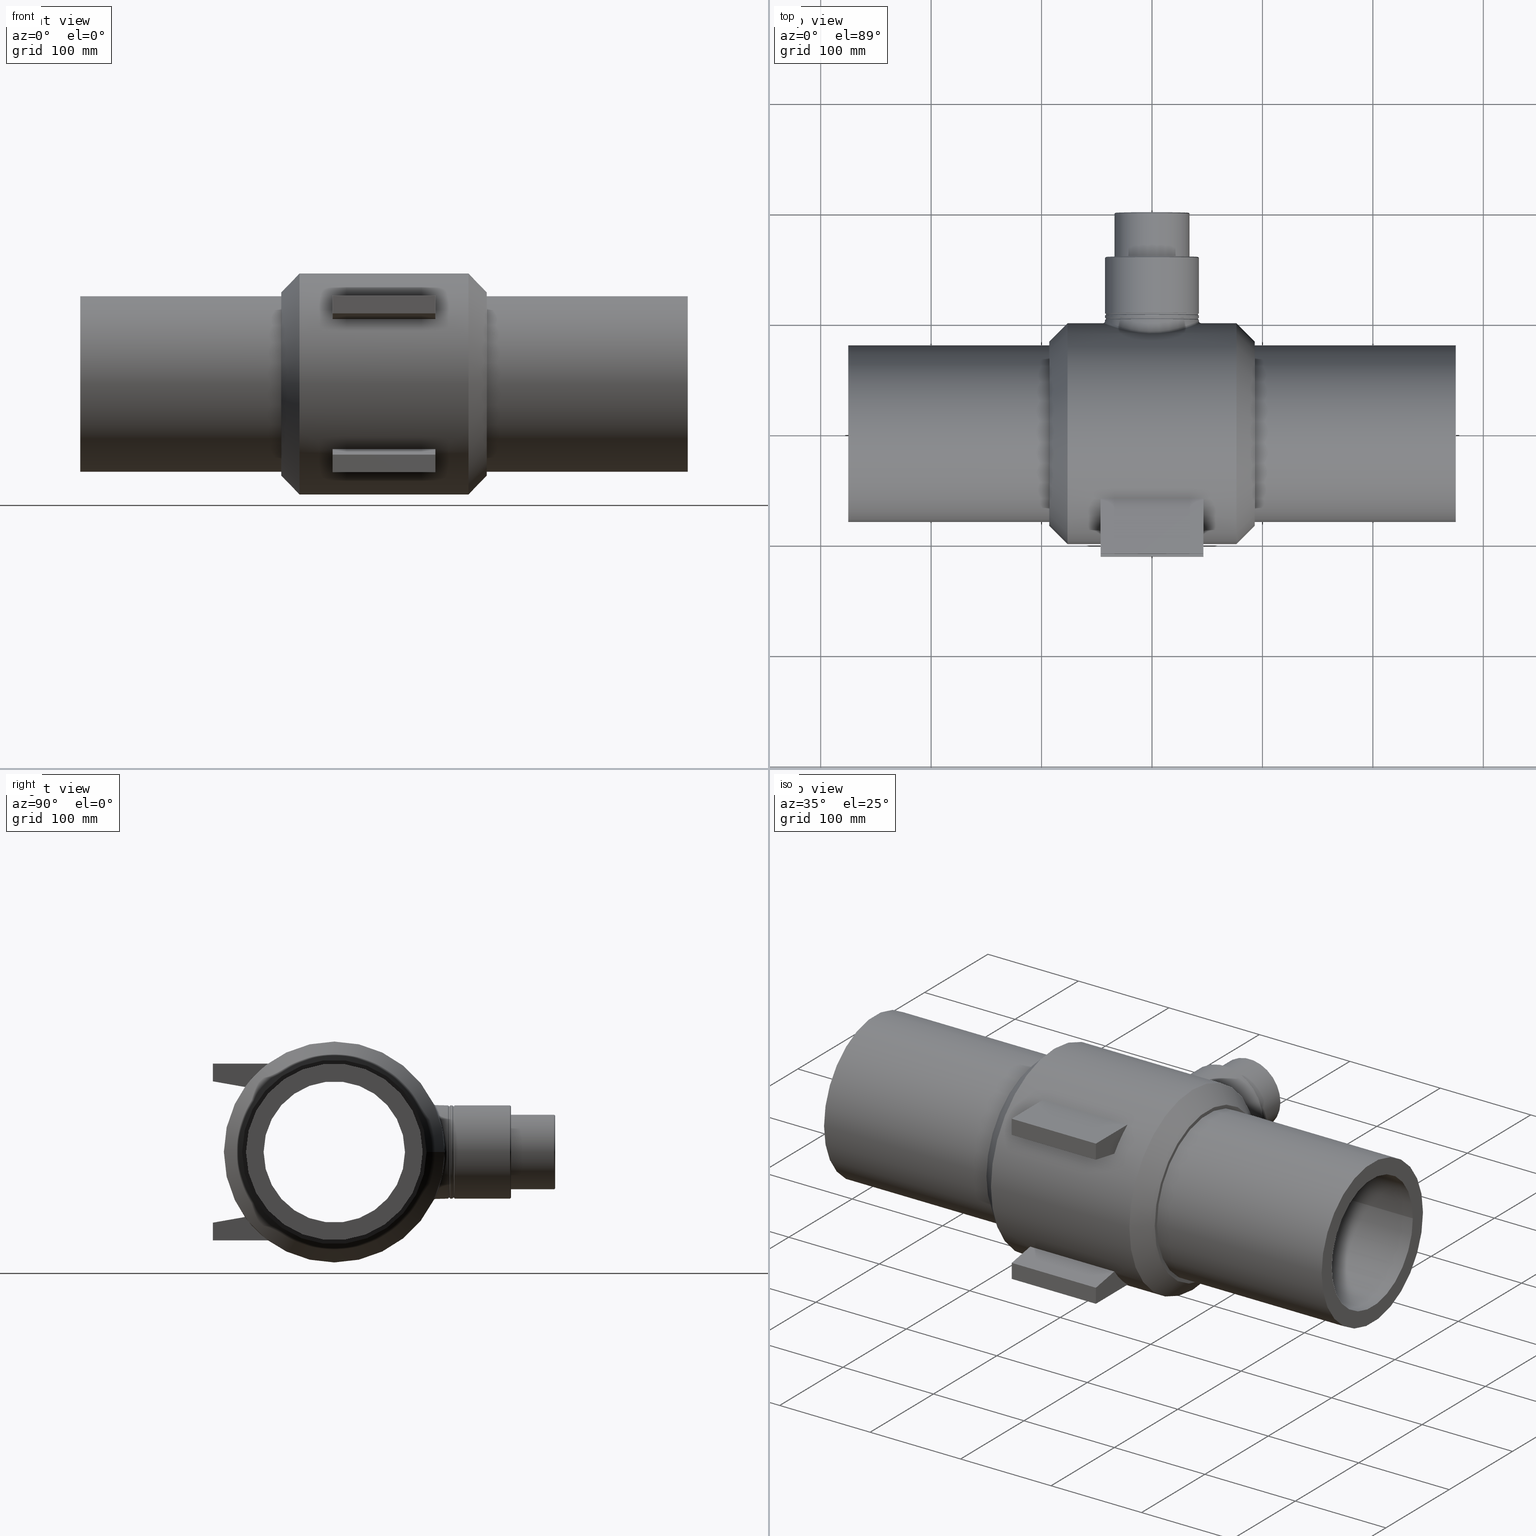
[diagram: canonical four-view strip — front | top / right | iso, engineering-drawing reading convention]
A machine part, canonical four-view strip (front | top / right | iso — engineering-drawing reading convention). The complete STEP part file that produces these views, byte-faithful:
ISO-10303-21;
HEADER;
/* Generated by software containing ST-Developer
 * from STEP Tools, Inc. (www.steptools.com) 
 */

FILE_DESCRIPTION(
/* description */ ('PLASSON PE BALL VALVE 160'),
/* implementation_level */ '2;1');

FILE_NAME(
/* name */ 
'C:\\Dropbox\\KIMPROJECTS-Inventor\\99-16-3568-Processing\\ElectroFusi
on Fittings\\436207\\436207160.ipt.stp',
/* time_stamp */ '2017-10-01T14:42:19+03:00',
/* author */ ('\X2\041A043804400438043B043B\X0\'),
/* organization */ (''),
/* preprocessor_version */ 'ST-DEVELOPER v15.6',
/* originating_system */ 'Autodesk Inventor 2015',
/* authorisation */ '');

FILE_SCHEMA (('AUTOMOTIVE_DESIGN { 1 0 10303 214 3 1 1 }'));
ENDSEC;

DATA;
#10=MECHANICAL_DESIGN_GEOMETRIC_PRESENTATION_REPRESENTATION('',(#13),#940);
#11=SHAPE_REPRESENTATION_RELATIONSHIP('SRR','None',#949,#12);
#12=ADVANCED_BREP_SHAPE_REPRESENTATION($,(#14),#939);
#13=STYLED_ITEM('',(#958),#14);
#14=MANIFOLD_SOLID_BREP('Solid1',#446);
#15=SPHERICAL_SURFACE('',#499,88.);
#16=TOROIDAL_SURFACE('',#470,42.5,0.85);
#17=TOROIDAL_SURFACE('',#474,42.5,0.85);
#18=PLANE('',#463);
#19=PLANE('',#469);
#20=PLANE('',#475);
#21=PLANE('',#476);
#22=PLANE('',#477);
#23=PLANE('',#478);
#24=PLANE('',#479);
#25=PLANE('',#480);
#26=PLANE('',#481);
#27=PLANE('',#482);
#28=PLANE('',#483);
#29=PLANE('',#484);
#30=PLANE('',#485);
#31=PLANE('',#491);
#32=PLANE('',#495);
#33=PLANE('',#503);
#34=CONICAL_SURFACE('',#458,42.075,44.9999999999997);
#35=CONICAL_SURFACE('',#465,33.575,44.9999999999994);
#36=CONICAL_SURFACE('',#488,91.75,45.);
#37=CONICAL_SURFACE('',#489,91.75,45.);
#38=LINE('',#835,#58);
#39=LINE('',#838,#59);
#40=LINE('',#843,#60);
#41=LINE('',#846,#61);
#42=LINE('',#874,#62);
#43=LINE('',#876,#63);
#44=LINE('',#877,#64);
#45=LINE('',#880,#65);
#46=LINE('',#881,#66);
#47=LINE('',#884,#67);
#48=LINE('',#885,#68);
#49=LINE('',#887,#69);
#50=LINE('',#891,#70);
#51=LINE('',#893,#71);
#52=LINE('',#894,#72);
#53=LINE('',#897,#73);
#54=LINE('',#898,#74);
#55=LINE('',#901,#75);
#56=LINE('',#902,#76);
#57=LINE('',#904,#77);
#58=VECTOR('',#522,93.);
#59=VECTOR('',#525,93.);
#60=VECTOR('',#528,93.);
#61=VECTOR('',#531,93.);
#62=VECTOR('',#568,50.);
#63=VECTOR('',#569,16.);
#64=VECTOR('',#570,29.6065322183256);
#65=VECTOR('',#573,93.);
#66=VECTOR('',#574,29.6065322183256);
#67=VECTOR('',#577,93.);
#68=VECTOR('',#578,16.);
#69=VECTOR('',#581,50.);
#70=VECTOR('',#586,50.);
#71=VECTOR('',#587,29.6065322183256);
#72=VECTOR('',#588,16.);
#73=VECTOR('',#591,29.6065322183256);
#74=VECTOR('',#592,93.);
#75=VECTOR('',#595,16.);
#76=VECTOR('',#596,93.);
#77=VECTOR('',#599,50.);
#78=FACE_BOUND('',#146,.T.);
#79=FACE_BOUND('',#148,.T.);
#80=FACE_BOUND('',#149,.T.);
#81=FACE_BOUND('',#150,.T.);
#82=FACE_BOUND('',#151,.T.);
#83=FACE_BOUND('',#153,.T.);
#84=FACE_BOUND('',#155,.T.);
#85=FACE_BOUND('',#157,.T.);
#86=FACE_BOUND('',#159,.T.);
#87=FACE_BOUND('',#161,.T.);
#88=FACE_BOUND('',#164,.T.);
#89=FACE_BOUND('',#166,.T.);
#90=FACE_BOUND('',#168,.T.);
#91=FACE_BOUND('',#180,.T.);
#92=FACE_BOUND('',#182,.T.);
#93=FACE_BOUND('',#184,.T.);
#94=FACE_BOUND('',#186,.T.);
#95=FACE_BOUND('',#188,.T.);
#96=FACE_BOUND('',#190,.T.);
#97=FACE_BOUND('',#192,.T.);
#98=FACE_BOUND('',#193,.T.);
#99=FACE_BOUND('',#194,.T.);
#100=FACE_BOUND('',#196,.T.);
#101=FACE_BOUND('',#198,.T.);
#102=FACE_BOUND('',#200,.T.);
#103=CYLINDRICAL_SURFACE('',#449,42.5);
#104=CYLINDRICAL_SURFACE('',#451,100.);
#105=CYLINDRICAL_SURFACE('',#461,42.5);
#106=CYLINDRICAL_SURFACE('',#468,34.);
#107=CYLINDRICAL_SURFACE('',#472,42.5);
#108=CYLINDRICAL_SURFACE('',#493,80.);
#109=CYLINDRICAL_SURFACE('',#497,64.);
#110=CYLINDRICAL_SURFACE('',#501,64.);
#111=CYLINDRICAL_SURFACE('',#505,80.);
#112=FACE_OUTER_BOUND('',#144,.T.);
#113=FACE_OUTER_BOUND('',#145,.T.);
#114=FACE_OUTER_BOUND('',#147,.T.);
#115=FACE_OUTER_BOUND('',#152,.T.);
#116=FACE_OUTER_BOUND('',#154,.T.);
#117=FACE_OUTER_BOUND('',#156,.T.);
#118=FACE_OUTER_BOUND('',#158,.T.);
#119=FACE_OUTER_BOUND('',#160,.T.);
#120=FACE_OUTER_BOUND('',#162,.T.);
#121=FACE_OUTER_BOUND('',#163,.T.);
#122=FACE_OUTER_BOUND('',#165,.T.);
#123=FACE_OUTER_BOUND('',#167,.T.);
#124=FACE_OUTER_BOUND('',#169,.T.);
#125=FACE_OUTER_BOUND('',#170,.T.);
#126=FACE_OUTER_BOUND('',#171,.T.);
#127=FACE_OUTER_BOUND('',#172,.T.);
#128=FACE_OUTER_BOUND('',#173,.T.);
#129=FACE_OUTER_BOUND('',#174,.T.);
#130=FACE_OUTER_BOUND('',#175,.T.);
#131=FACE_OUTER_BOUND('',#176,.T.);
#132=FACE_OUTER_BOUND('',#177,.T.);
#133=FACE_OUTER_BOUND('',#178,.T.);
#134=FACE_OUTER_BOUND('',#179,.T.);
#135=FACE_OUTER_BOUND('',#181,.T.);
#136=FACE_OUTER_BOUND('',#183,.T.);
#137=FACE_OUTER_BOUND('',#185,.T.);
#138=FACE_OUTER_BOUND('',#187,.T.);
#139=FACE_OUTER_BOUND('',#189,.T.);
#140=FACE_OUTER_BOUND('',#191,.T.);
#141=FACE_OUTER_BOUND('',#195,.T.);
#142=FACE_OUTER_BOUND('',#197,.T.);
#143=FACE_OUTER_BOUND('',#199,.T.);
#144=EDGE_LOOP('',(#316,#317,#318,#319));
#145=EDGE_LOOP('',(#320));
#146=EDGE_LOOP('',(#321));
#147=EDGE_LOOP('',(#322));
#148=EDGE_LOOP('',(#323));
#149=EDGE_LOOP('',(#324,#325,#326,#327));
#150=EDGE_LOOP('',(#328,#329,#330,#331));
#151=EDGE_LOOP('',(#332));
#152=EDGE_LOOP('',(#333));
#153=EDGE_LOOP('',(#334));
#154=EDGE_LOOP('',(#335));
#155=EDGE_LOOP('',(#336));
#156=EDGE_LOOP('',(#337));
#157=EDGE_LOOP('',(#338));
#158=EDGE_LOOP('',(#339));
#159=EDGE_LOOP('',(#340));
#160=EDGE_LOOP('',(#341));
#161=EDGE_LOOP('',(#342));
#162=EDGE_LOOP('',(#343));
#163=EDGE_LOOP('',(#344));
#164=EDGE_LOOP('',(#345));
#165=EDGE_LOOP('',(#346));
#166=EDGE_LOOP('',(#347));
#167=EDGE_LOOP('',(#348));
#168=EDGE_LOOP('',(#349));
#169=EDGE_LOOP('',(#350,#351,#352,#353));
#170=EDGE_LOOP('',(#354,#355,#356,#357));
#171=EDGE_LOOP('',(#358,#359,#360,#361));
#172=EDGE_LOOP('',(#362,#363,#364,#365));
#173=EDGE_LOOP('',(#366,#367,#368,#369));
#174=EDGE_LOOP('',(#370,#371,#372,#373));
#175=EDGE_LOOP('',(#374,#375,#376,#377));
#176=EDGE_LOOP('',(#378,#379,#380,#381));
#177=EDGE_LOOP('',(#382,#383,#384,#385));
#178=EDGE_LOOP('',(#386,#387,#388,#389));
#179=EDGE_LOOP('',(#390));
#180=EDGE_LOOP('',(#391));
#181=EDGE_LOOP('',(#392));
#182=EDGE_LOOP('',(#393));
#183=EDGE_LOOP('',(#394));
#184=EDGE_LOOP('',(#395));
#185=EDGE_LOOP('',(#396));
#186=EDGE_LOOP('',(#397));
#187=EDGE_LOOP('',(#398));
#188=EDGE_LOOP('',(#399));
#189=EDGE_LOOP('',(#400));
#190=EDGE_LOOP('',(#401));
#191=EDGE_LOOP('',(#402));
#192=EDGE_LOOP('',(#403));
#193=EDGE_LOOP('',(#404));
#194=EDGE_LOOP('',(#405));
#195=EDGE_LOOP('',(#406));
#196=EDGE_LOOP('',(#407));
#197=EDGE_LOOP('',(#408));
#198=EDGE_LOOP('',(#409));
#199=EDGE_LOOP('',(#410));
#200=EDGE_LOOP('',(#411));
#201=B_SPLINE_CURVE_WITH_KNOTS('',3,(#773,#774,#775,#776,#777,#778,#779,
#780,#781,#782,#783,#784,#785,#786,#787,#788,#789,#790,#791,#792,#793,#794,
#795,#796,#797),.UNSPECIFIED.,.T.,.F.,(4,1,1,1,1,1,1,1,1,1,1,1,1,1,1,1,
1,1,1,1,1,1,4),(12.9889981258876,13.9167837063082,14.8445692867287,16.7001404475698,
18.5557116084109,19.4834971888314,20.411282769252,21.6483302098127,22.8853776503734,
24.1224250909342,24.7409488112145,25.3594725314949,26.5965199720556,27.8335674126163,
29.0706148531771,30.3076622937378,31.5447097342985,32.7817571748593,34.01880461542,
35.2558520559807,37.1114232168218,38.0392087972423,38.9669943776629),
 .UNSPECIFIED.);
#202=B_SPLINE_CURVE_WITH_KNOTS('',3,(#798,#799,#800,#801,#802,#803,#804,
#805,#806,#807,#808,#809,#810,#811,#812,#813,#814,#815,#816,#817,#818,#819,
#820,#821,#822),.UNSPECIFIED.,.T.,.F.,(4,1,1,1,1,1,1,1,1,1,1,1,1,1,1,1,
1,1,1,1,1,1,4),(-38.9669943776629,-38.0392087972423,-37.1114232168218,-35.2558520559807,
-34.01880461542,-32.7817571748593,-31.5447097342985,-30.3076622937378,-29.0706148531771,
-27.8335674126163,-26.5965199720556,-25.3594725314949,-24.7409488112145,
-24.1224250909342,-22.8853776503734,-21.6483302098127,-20.411282769252,
-19.4834971888314,-18.5557116084109,-16.7001404475698,-14.8445692867287,
-13.9167837063082,-12.9889981258876),.UNSPECIFIED.);
#203=CIRCLE('',#448,1.7);
#204=CIRCLE('',#450,42.5);
#205=CIRCLE('',#452,100.);
#206=CIRCLE('',#453,100.);
#207=CIRCLE('',#454,100.);
#208=CIRCLE('',#455,100.);
#209=CIRCLE('',#456,100.);
#210=CIRCLE('',#457,100.);
#211=CIRCLE('',#459,42.5);
#212=CIRCLE('',#460,41.65);
#213=CIRCLE('',#462,42.5);
#214=CIRCLE('',#464,34.);
#215=CIRCLE('',#466,34.);
#216=CIRCLE('',#467,33.15);
#217=CIRCLE('',#471,42.5);
#218=CIRCLE('',#473,42.5);
#219=CIRCLE('',#486,83.5);
#220=CIRCLE('',#487,80.);
#221=CIRCLE('',#490,83.5);
#222=CIRCLE('',#492,80.);
#223=CIRCLE('',#494,80.);
#224=CIRCLE('',#496,64.);
#225=CIRCLE('',#498,64.);
#226=CIRCLE('',#500,64.);
#227=CIRCLE('',#502,64.);
#228=CIRCLE('',#504,80.);
#229=VERTEX_POINT('',#770);
#230=VERTEX_POINT('',#771);
#231=VERTEX_POINT('',#824);
#232=VERTEX_POINT('',#827);
#233=VERTEX_POINT('',#829);
#234=VERTEX_POINT('',#831);
#235=VERTEX_POINT('',#832);
#236=VERTEX_POINT('',#834);
#237=VERTEX_POINT('',#836);
#238=VERTEX_POINT('',#839);
#239=VERTEX_POINT('',#840);
#240=VERTEX_POINT('',#842);
#241=VERTEX_POINT('',#844);
#242=VERTEX_POINT('',#848);
#243=VERTEX_POINT('',#850);
#244=VERTEX_POINT('',#853);
#245=VERTEX_POINT('',#856);
#246=VERTEX_POINT('',#859);
#247=VERTEX_POINT('',#861);
#248=VERTEX_POINT('',#866);
#249=VERTEX_POINT('',#869);
#250=VERTEX_POINT('',#873);
#251=VERTEX_POINT('',#875);
#252=VERTEX_POINT('',#879);
#253=VERTEX_POINT('',#883);
#254=VERTEX_POINT('',#890);
#255=VERTEX_POINT('',#892);
#256=VERTEX_POINT('',#896);
#257=VERTEX_POINT('',#900);
#258=VERTEX_POINT('',#907);
#259=VERTEX_POINT('',#909);
#260=VERTEX_POINT('',#913);
#261=VERTEX_POINT('',#916);
#262=VERTEX_POINT('',#919);
#263=VERTEX_POINT('',#922);
#264=VERTEX_POINT('',#925);
#265=VERTEX_POINT('',#928);
#266=VERTEX_POINT('',#931);
#267=VERTEX_POINT('',#934);
#268=EDGE_CURVE('',#229,#230,#203,.T.);
#269=EDGE_CURVE('',#230,#230,#201,.T.);
#270=EDGE_CURVE('',#229,#229,#202,.T.);
#271=EDGE_CURVE('',#231,#231,#204,.T.);
#272=EDGE_CURVE('',#232,#232,#205,.T.);
#273=EDGE_CURVE('',#233,#233,#206,.T.);
#274=EDGE_CURVE('',#234,#235,#207,.T.);
#275=EDGE_CURVE('',#235,#236,#38,.T.);
#276=EDGE_CURVE('',#236,#237,#208,.T.);
#277=EDGE_CURVE('',#237,#234,#39,.T.);
#278=EDGE_CURVE('',#238,#239,#209,.T.);
#279=EDGE_CURVE('',#239,#240,#40,.T.);
#280=EDGE_CURVE('',#240,#241,#210,.T.);
#281=EDGE_CURVE('',#241,#238,#41,.T.);
#282=EDGE_CURVE('',#242,#242,#211,.T.);
#283=EDGE_CURVE('',#243,#243,#212,.T.);
#284=EDGE_CURVE('',#244,#244,#213,.T.);
#285=EDGE_CURVE('',#245,#245,#214,.T.);
#286=EDGE_CURVE('',#246,#246,#215,.T.);
#287=EDGE_CURVE('',#247,#247,#216,.T.);
#288=EDGE_CURVE('',#248,#248,#217,.T.);
#289=EDGE_CURVE('',#249,#249,#218,.T.);
#290=EDGE_CURVE('',#250,#238,#42,.T.);
#291=EDGE_CURVE('',#251,#250,#43,.T.);
#292=EDGE_CURVE('',#239,#251,#44,.T.);
#293=EDGE_CURVE('',#251,#252,#45,.T.);
#294=EDGE_CURVE('',#252,#240,#46,.T.);
#295=EDGE_CURVE('',#250,#253,#47,.T.);
#296=EDGE_CURVE('',#253,#252,#48,.T.);
#297=EDGE_CURVE('',#241,#253,#49,.T.);
#298=EDGE_CURVE('',#254,#235,#50,.T.);
#299=EDGE_CURVE('',#234,#255,#51,.T.);
#300=EDGE_CURVE('',#255,#254,#52,.T.);
#301=EDGE_CURVE('',#256,#237,#53,.T.);
#302=EDGE_CURVE('',#255,#256,#54,.T.);
#303=EDGE_CURVE('',#257,#256,#55,.T.);
#304=EDGE_CURVE('',#254,#257,#56,.T.);
#305=EDGE_CURVE('',#236,#257,#57,.T.);
#306=EDGE_CURVE('',#258,#258,#219,.T.);
#307=EDGE_CURVE('',#259,#259,#220,.T.);
#308=EDGE_CURVE('',#260,#260,#221,.T.);
#309=EDGE_CURVE('',#261,#261,#222,.T.);
#310=EDGE_CURVE('',#262,#262,#223,.T.);
#311=EDGE_CURVE('',#263,#263,#224,.T.);
#312=EDGE_CURVE('',#264,#264,#225,.T.);
#313=EDGE_CURVE('',#265,#265,#226,.T.);
#314=EDGE_CURVE('',#266,#266,#227,.T.);
#315=EDGE_CURVE('',#267,#267,#228,.T.);
#316=ORIENTED_EDGE('',*,*,#268,.T.);
#317=ORIENTED_EDGE('',*,*,#269,.T.);
#318=ORIENTED_EDGE('',*,*,#268,.F.);
#319=ORIENTED_EDGE('',*,*,#270,.T.);
#320=ORIENTED_EDGE('',*,*,#271,.F.);
#321=ORIENTED_EDGE('',*,*,#269,.F.);
#322=ORIENTED_EDGE('',*,*,#272,.T.);
#323=ORIENTED_EDGE('',*,*,#273,.F.);
#324=ORIENTED_EDGE('',*,*,#274,.T.);
#325=ORIENTED_EDGE('',*,*,#275,.T.);
#326=ORIENTED_EDGE('',*,*,#276,.T.);
#327=ORIENTED_EDGE('',*,*,#277,.T.);
#328=ORIENTED_EDGE('',*,*,#278,.T.);
#329=ORIENTED_EDGE('',*,*,#279,.T.);
#330=ORIENTED_EDGE('',*,*,#280,.T.);
#331=ORIENTED_EDGE('',*,*,#281,.T.);
#332=ORIENTED_EDGE('',*,*,#270,.F.);
#333=ORIENTED_EDGE('',*,*,#282,.T.);
#334=ORIENTED_EDGE('',*,*,#283,.T.);
#335=ORIENTED_EDGE('',*,*,#284,.T.);
#336=ORIENTED_EDGE('',*,*,#282,.F.);
#337=ORIENTED_EDGE('',*,*,#283,.F.);
#338=ORIENTED_EDGE('',*,*,#285,.F.);
#339=ORIENTED_EDGE('',*,*,#286,.T.);
#340=ORIENTED_EDGE('',*,*,#287,.T.);
#341=ORIENTED_EDGE('',*,*,#285,.T.);
#342=ORIENTED_EDGE('',*,*,#286,.F.);
#343=ORIENTED_EDGE('',*,*,#287,.F.);
#344=ORIENTED_EDGE('',*,*,#271,.T.);
#345=ORIENTED_EDGE('',*,*,#288,.F.);
#346=ORIENTED_EDGE('',*,*,#288,.T.);
#347=ORIENTED_EDGE('',*,*,#289,.F.);
#348=ORIENTED_EDGE('',*,*,#289,.T.);
#349=ORIENTED_EDGE('',*,*,#284,.F.);
#350=ORIENTED_EDGE('',*,*,#290,.F.);
#351=ORIENTED_EDGE('',*,*,#291,.F.);
#352=ORIENTED_EDGE('',*,*,#292,.F.);
#353=ORIENTED_EDGE('',*,*,#278,.F.);
#354=ORIENTED_EDGE('',*,*,#279,.F.);
#355=ORIENTED_EDGE('',*,*,#292,.T.);
#356=ORIENTED_EDGE('',*,*,#293,.T.);
#357=ORIENTED_EDGE('',*,*,#294,.T.);
#358=ORIENTED_EDGE('',*,*,#293,.F.);
#359=ORIENTED_EDGE('',*,*,#291,.T.);
#360=ORIENTED_EDGE('',*,*,#295,.T.);
#361=ORIENTED_EDGE('',*,*,#296,.T.);
#362=ORIENTED_EDGE('',*,*,#295,.F.);
#363=ORIENTED_EDGE('',*,*,#290,.T.);
#364=ORIENTED_EDGE('',*,*,#281,.F.);
#365=ORIENTED_EDGE('',*,*,#297,.T.);
#366=ORIENTED_EDGE('',*,*,#297,.F.);
#367=ORIENTED_EDGE('',*,*,#280,.F.);
#368=ORIENTED_EDGE('',*,*,#294,.F.);
#369=ORIENTED_EDGE('',*,*,#296,.F.);
#370=ORIENTED_EDGE('',*,*,#298,.T.);
#371=ORIENTED_EDGE('',*,*,#274,.F.);
#372=ORIENTED_EDGE('',*,*,#299,.T.);
#373=ORIENTED_EDGE('',*,*,#300,.T.);
#374=ORIENTED_EDGE('',*,*,#277,.F.);
#375=ORIENTED_EDGE('',*,*,#301,.F.);
#376=ORIENTED_EDGE('',*,*,#302,.F.);
#377=ORIENTED_EDGE('',*,*,#299,.F.);
#378=ORIENTED_EDGE('',*,*,#302,.T.);
#379=ORIENTED_EDGE('',*,*,#303,.F.);
#380=ORIENTED_EDGE('',*,*,#304,.F.);
#381=ORIENTED_EDGE('',*,*,#300,.F.);
#382=ORIENTED_EDGE('',*,*,#304,.T.);
#383=ORIENTED_EDGE('',*,*,#305,.F.);
#384=ORIENTED_EDGE('',*,*,#275,.F.);
#385=ORIENTED_EDGE('',*,*,#298,.F.);
#386=ORIENTED_EDGE('',*,*,#305,.T.);
#387=ORIENTED_EDGE('',*,*,#303,.T.);
#388=ORIENTED_EDGE('',*,*,#301,.T.);
#389=ORIENTED_EDGE('',*,*,#276,.F.);
#390=ORIENTED_EDGE('',*,*,#306,.F.);
#391=ORIENTED_EDGE('',*,*,#307,.T.);
#392=ORIENTED_EDGE('',*,*,#272,.F.);
#393=ORIENTED_EDGE('',*,*,#306,.T.);
#394=ORIENTED_EDGE('',*,*,#308,.F.);
#395=ORIENTED_EDGE('',*,*,#273,.T.);
#396=ORIENTED_EDGE('',*,*,#308,.T.);
#397=ORIENTED_EDGE('',*,*,#309,.F.);
#398=ORIENTED_EDGE('',*,*,#310,.F.);
#399=ORIENTED_EDGE('',*,*,#309,.T.);
#400=ORIENTED_EDGE('',*,*,#310,.T.);
#401=ORIENTED_EDGE('',*,*,#311,.F.);
#402=ORIENTED_EDGE('',*,*,#312,.F.);
#403=ORIENTED_EDGE('',*,*,#311,.T.);
#404=ORIENTED_EDGE('',*,*,#313,.F.);
#405=ORIENTED_EDGE('',*,*,#312,.T.);
#406=ORIENTED_EDGE('',*,*,#314,.F.);
#407=ORIENTED_EDGE('',*,*,#313,.T.);
#408=ORIENTED_EDGE('',*,*,#315,.F.);
#409=ORIENTED_EDGE('',*,*,#314,.T.);
#410=ORIENTED_EDGE('',*,*,#307,.F.);
#411=ORIENTED_EDGE('',*,*,#315,.T.);
#412=B_SPLINE_SURFACE_WITH_KNOTS('',3,3,((#645,#646,#647,#648,#649,#650,
#651,#652,#653,#654,#655,#656,#657,#658,#659,#660,#661,#662,#663,#664,#665,
#666,#667,#668,#669),(#670,#671,#672,#673,#674,#675,#676,#677,#678,#679,
#680,#681,#682,#683,#684,#685,#686,#687,#688,#689,#690,#691,#692,#693,#694),
(#695,#696,#697,#698,#699,#700,#701,#702,#703,#704,#705,#706,#707,#708,
#709,#710,#711,#712,#713,#714,#715,#716,#717,#718,#719),(#720,#721,#722,
#723,#724,#725,#726,#727,#728,#729,#730,#731,#732,#733,#734,#735,#736,#737,
#738,#739,#740,#741,#742,#743,#744),(#745,#746,#747,#748,#749,#750,#751,
#752,#753,#754,#755,#756,#757,#758,#759,#760,#761,#762,#763,#764,#765,#766,
#767,#768,#769)),.UNSPECIFIED.,.F.,.T.,.F.,(4,1,4),(4,1,1,1,1,1,1,1,1,1,
1,1,1,1,1,1,1,1,1,1,1,1,4),(0.,0.571428571428571,1.),(12.9889981258876,
13.9167837063082,14.8445692867287,16.7001404475698,18.5557116084109,19.4834971888314,
20.411282769252,21.6483302098127,22.8853776503734,24.1224250909342,24.7409488112145,
25.3594725314949,26.5965199720556,27.8335674126163,29.0706148531771,30.3076622937378,
31.5447097342985,32.7817571748593,34.01880461542,35.2558520559807,37.1114232168218,
38.0392087972423,38.9669943776629),.UNSPECIFIED.);
#413=ADVANCED_FACE('',(#112),#412,.T.);
#414=ADVANCED_FACE('',(#113,#78),#103,.T.);
#415=ADVANCED_FACE('',(#114,#79,#80,#81,#82),#104,.T.);
#416=ADVANCED_FACE('',(#115,#83),#34,.T.);
#417=ADVANCED_FACE('',(#116,#84),#105,.T.);
#418=ADVANCED_FACE('',(#117,#85),#18,.T.);
#419=ADVANCED_FACE('',(#118,#86),#35,.T.);
#420=ADVANCED_FACE('',(#119,#87),#106,.T.);
#421=ADVANCED_FACE('',(#120),#19,.T.);
#422=ADVANCED_FACE('',(#121,#88),#16,.F.);
#423=ADVANCED_FACE('',(#122,#89),#107,.T.);
#424=ADVANCED_FACE('',(#123,#90),#17,.F.);
#425=ADVANCED_FACE('',(#124),#20,.T.);
#426=ADVANCED_FACE('',(#125),#21,.F.);
#427=ADVANCED_FACE('',(#126),#22,.F.);
#428=ADVANCED_FACE('',(#127),#23,.F.);
#429=ADVANCED_FACE('',(#128),#24,.F.);
#430=ADVANCED_FACE('',(#129),#25,.F.);
#431=ADVANCED_FACE('',(#130),#26,.T.);
#432=ADVANCED_FACE('',(#131),#27,.T.);
#433=ADVANCED_FACE('',(#132),#28,.T.);
#434=ADVANCED_FACE('',(#133),#29,.T.);
#435=ADVANCED_FACE('',(#134,#91),#30,.T.);
#436=ADVANCED_FACE('',(#135,#92),#36,.T.);
#437=ADVANCED_FACE('',(#136,#93),#37,.T.);
#438=ADVANCED_FACE('',(#137,#94),#31,.T.);
#439=ADVANCED_FACE('',(#138,#95),#108,.T.);
#440=ADVANCED_FACE('',(#139,#96),#32,.T.);
#441=ADVANCED_FACE('',(#140,#97),#109,.F.);
#442=ADVANCED_FACE('',(#98,#99),#15,.F.);
#443=ADVANCED_FACE('',(#141,#100),#110,.F.);
#444=ADVANCED_FACE('',(#142,#101),#33,.T.);
#445=ADVANCED_FACE('',(#143,#102),#111,.T.);
#446=CLOSED_SHELL('',(#413,#414,#415,#416,#417,#418,#419,#420,#421,#422,
#423,#424,#425,#426,#427,#428,#429,#430,#431,#432,#433,#434,#435,#436,#437,
#438,#439,#440,#441,#442,#443,#444,#445));
#447=AXIS2_PLACEMENT_3D('placement',#644,#506,#507);
#448=AXIS2_PLACEMENT_3D('',#772,#508,#509);
#449=AXIS2_PLACEMENT_3D('',#823,#510,#511);
#450=AXIS2_PLACEMENT_3D('',#825,#512,#513);
#451=AXIS2_PLACEMENT_3D('',#826,#514,#515);
#452=AXIS2_PLACEMENT_3D('',#828,#516,#517);
#453=AXIS2_PLACEMENT_3D('',#830,#518,#519);
#454=AXIS2_PLACEMENT_3D('',#833,#520,#521);
#455=AXIS2_PLACEMENT_3D('',#837,#523,#524);
#456=AXIS2_PLACEMENT_3D('',#841,#526,#527);
#457=AXIS2_PLACEMENT_3D('',#845,#529,#530);
#458=AXIS2_PLACEMENT_3D('',#847,#532,#533);
#459=AXIS2_PLACEMENT_3D('',#849,#534,#535);
#460=AXIS2_PLACEMENT_3D('',#851,#536,#537);
#461=AXIS2_PLACEMENT_3D('',#852,#538,#539);
#462=AXIS2_PLACEMENT_3D('',#854,#540,#541);
#463=AXIS2_PLACEMENT_3D('',#855,#542,#543);
#464=AXIS2_PLACEMENT_3D('',#857,#544,#545);
#465=AXIS2_PLACEMENT_3D('',#858,#546,#547);
#466=AXIS2_PLACEMENT_3D('',#860,#548,#549);
#467=AXIS2_PLACEMENT_3D('',#862,#550,#551);
#468=AXIS2_PLACEMENT_3D('',#863,#552,#553);
#469=AXIS2_PLACEMENT_3D('',#864,#554,#555);
#470=AXIS2_PLACEMENT_3D('',#865,#556,#557);
#471=AXIS2_PLACEMENT_3D('',#867,#558,#559);
#472=AXIS2_PLACEMENT_3D('',#868,#560,#561);
#473=AXIS2_PLACEMENT_3D('',#870,#562,#563);
#474=AXIS2_PLACEMENT_3D('',#871,#564,#565);
#475=AXIS2_PLACEMENT_3D('',#872,#566,#567);
#476=AXIS2_PLACEMENT_3D('',#878,#571,#572);
#477=AXIS2_PLACEMENT_3D('',#882,#575,#576);
#478=AXIS2_PLACEMENT_3D('',#886,#579,#580);
#479=AXIS2_PLACEMENT_3D('',#888,#582,#583);
#480=AXIS2_PLACEMENT_3D('',#889,#584,#585);
#481=AXIS2_PLACEMENT_3D('',#895,#589,#590);
#482=AXIS2_PLACEMENT_3D('',#899,#593,#594);
#483=AXIS2_PLACEMENT_3D('',#903,#597,#598);
#484=AXIS2_PLACEMENT_3D('',#905,#600,#601);
#485=AXIS2_PLACEMENT_3D('',#906,#602,#603);
#486=AXIS2_PLACEMENT_3D('',#908,#604,#605);
#487=AXIS2_PLACEMENT_3D('',#910,#606,#607);
#488=AXIS2_PLACEMENT_3D('',#911,#608,#609);
#489=AXIS2_PLACEMENT_3D('',#912,#610,#611);
#490=AXIS2_PLACEMENT_3D('',#914,#612,#613);
#491=AXIS2_PLACEMENT_3D('',#915,#614,#615);
#492=AXIS2_PLACEMENT_3D('',#917,#616,#617);
#493=AXIS2_PLACEMENT_3D('',#918,#618,#619);
#494=AXIS2_PLACEMENT_3D('',#920,#620,#621);
#495=AXIS2_PLACEMENT_3D('',#921,#622,#623);
#496=AXIS2_PLACEMENT_3D('',#923,#624,#625);
#497=AXIS2_PLACEMENT_3D('',#924,#626,#627);
#498=AXIS2_PLACEMENT_3D('',#926,#628,#629);
#499=AXIS2_PLACEMENT_3D('',#927,#630,#631);
#500=AXIS2_PLACEMENT_3D('',#929,#632,#633);
#501=AXIS2_PLACEMENT_3D('',#930,#634,#635);
#502=AXIS2_PLACEMENT_3D('',#932,#636,#637);
#503=AXIS2_PLACEMENT_3D('',#933,#638,#639);
#504=AXIS2_PLACEMENT_3D('',#935,#640,#641);
#505=AXIS2_PLACEMENT_3D('',#936,#642,#643);
#506=DIRECTION('axis',(0.,0.,1.));
#507=DIRECTION('refdir',(1.,0.,0.));
#508=DIRECTION('center_axis',(-1.,4.4135737621438E-16,1.63268091856641E-16));
#509=DIRECTION('ref_axis',(-3.26536183713282E-16,-0.900617984914968,0.434611602753197));
#510=DIRECTION('center_axis',(0.,1.,0.));
#511=DIRECTION('ref_axis',(-1.,0.,0.));
#512=DIRECTION('center_axis',(0.,1.,0.));
#513=DIRECTION('ref_axis',(1.,0.,0.));
#514=DIRECTION('center_axis',(1.,0.,0.));
#515=DIRECTION('ref_axis',(0.,1.,0.));
#516=DIRECTION('center_axis',(1.,0.,0.));
#517=DIRECTION('ref_axis',(0.,0.,-1.));
#518=DIRECTION('center_axis',(1.,0.,0.));
#519=DIRECTION('ref_axis',(0.,0.,-1.));
#520=DIRECTION('center_axis',(-1.,0.,0.));
#521=DIRECTION('ref_axis',(0.,1.,0.));
#522=DIRECTION('',(1.,0.,0.));
#523=DIRECTION('center_axis',(1.,0.,0.));
#524=DIRECTION('ref_axis',(0.,1.,0.));
#525=DIRECTION('',(-1.,0.,0.));
#526=DIRECTION('center_axis',(-1.,0.,0.));
#527=DIRECTION('ref_axis',(0.,1.,0.));
#528=DIRECTION('',(1.,0.,0.));
#529=DIRECTION('center_axis',(1.,0.,0.));
#530=DIRECTION('ref_axis',(0.,1.,0.));
#531=DIRECTION('',(-1.,0.,0.));
#532=DIRECTION('center_axis',(0.,-1.,0.));
#533=DIRECTION('ref_axis',(1.,0.,0.));
#534=DIRECTION('center_axis',(0.,1.,0.));
#535=DIRECTION('ref_axis',(1.,0.,0.));
#536=DIRECTION('center_axis',(0.,-1.,0.));
#537=DIRECTION('ref_axis',(1.,0.,0.));
#538=DIRECTION('center_axis',(0.,1.,0.));
#539=DIRECTION('ref_axis',(-1.,0.,0.));
#540=DIRECTION('center_axis',(0.,1.,0.));
#541=DIRECTION('ref_axis',(1.,0.,0.));
#542=DIRECTION('center_axis',(0.,1.,0.));
#543=DIRECTION('ref_axis',(0.,0.,1.));
#544=DIRECTION('center_axis',(0.,1.,0.));
#545=DIRECTION('ref_axis',(1.,0.,0.));
#546=DIRECTION('center_axis',(0.,-1.,0.));
#547=DIRECTION('ref_axis',(1.,0.,0.));
#548=DIRECTION('center_axis',(0.,1.,0.));
#549=DIRECTION('ref_axis',(1.,0.,0.));
#550=DIRECTION('center_axis',(0.,-1.,0.));
#551=DIRECTION('ref_axis',(1.,0.,0.));
#552=DIRECTION('center_axis',(0.,1.,0.));
#553=DIRECTION('ref_axis',(-1.,0.,0.));
#554=DIRECTION('center_axis',(0.,1.,0.));
#555=DIRECTION('ref_axis',(0.,0.,1.));
#556=DIRECTION('center_axis',(0.,1.,0.));
#557=DIRECTION('ref_axis',(0.,0.,1.));
#558=DIRECTION('center_axis',(0.,1.,0.));
#559=DIRECTION('ref_axis',(1.,0.,0.));
#560=DIRECTION('center_axis',(0.,1.,0.));
#561=DIRECTION('ref_axis',(-1.,0.,0.));
#562=DIRECTION('center_axis',(0.,1.,0.));
#563=DIRECTION('ref_axis',(1.,0.,0.));
#564=DIRECTION('center_axis',(0.,1.,0.));
#565=DIRECTION('ref_axis',(0.,0.,1.));
#566=DIRECTION('center_axis',(-1.,0.,0.));
#567=DIRECTION('ref_axis',(0.,0.,1.));
#568=DIRECTION('',(0.,1.,0.));
#569=DIRECTION('',(0.,-2.22044604925031E-15,-1.));
#570=DIRECTION('',(0.,-0.984807753012208,-0.17364817766693));
#571=DIRECTION('center_axis',(0.,0.17364817766693,-0.984807753012208));
#572=DIRECTION('ref_axis',(0.,0.984807753012208,0.173648177666929));
#573=DIRECTION('',(1.,0.,0.));
#574=DIRECTION('',(0.,0.984807753012208,0.17364817766693));
#575=DIRECTION('center_axis',(0.,1.,-2.22044604925031E-15));
#576=DIRECTION('ref_axis',(0.,2.8421709430404E-15,1.));
#577=DIRECTION('',(1.,0.,0.));
#578=DIRECTION('',(0.,2.22044604925031E-15,1.));
#579=DIRECTION('center_axis',(0.,0.,1.));
#580=DIRECTION('ref_axis',(0.,-1.,0.));
#581=DIRECTION('',(0.,-1.,0.));
#582=DIRECTION('center_axis',(-1.,0.,0.));
#583=DIRECTION('ref_axis',(0.,0.,1.));
#584=DIRECTION('center_axis',(1.,0.,0.));
#585=DIRECTION('ref_axis',(0.,0.,-1.));
#586=DIRECTION('',(0.,1.,0.));
#587=DIRECTION('',(0.,-0.984807753012208,0.17364817766693));
#588=DIRECTION('',(0.,-2.22044604925031E-15,1.));
#589=DIRECTION('center_axis',(0.,-0.17364817766693,-0.984807753012208));
#590=DIRECTION('ref_axis',(0.,0.984807753012208,-0.173648177666929));
#591=DIRECTION('',(0.,0.984807753012208,-0.17364817766693));
#592=DIRECTION('',(1.,0.,0.));
#593=DIRECTION('center_axis',(0.,-1.,-2.22044604925031E-15));
#594=DIRECTION('ref_axis',(0.,2.8421709430404E-15,-1.));
#595=DIRECTION('',(0.,2.22044604925031E-15,-1.));
#596=DIRECTION('',(1.,0.,0.));
#597=DIRECTION('center_axis',(0.,0.,1.));
#598=DIRECTION('ref_axis',(0.,-1.,0.));
#599=DIRECTION('',(0.,-1.,0.));
#600=DIRECTION('center_axis',(1.,0.,0.));
#601=DIRECTION('ref_axis',(0.,0.,-1.));
#602=DIRECTION('center_axis',(-1.,0.,0.));
#603=DIRECTION('ref_axis',(0.,0.,1.));
#604=DIRECTION('center_axis',(1.,0.,0.));
#605=DIRECTION('ref_axis',(0.,0.,-1.));
#606=DIRECTION('center_axis',(1.,0.,0.));
#607=DIRECTION('ref_axis',(0.,0.,-1.));
#608=DIRECTION('center_axis',(1.,0.,0.));
#609=DIRECTION('ref_axis',(0.,1.,0.));
#610=DIRECTION('center_axis',(-1.,0.,0.));
#611=DIRECTION('ref_axis',(0.,1.,0.));
#612=DIRECTION('center_axis',(1.,0.,0.));
#613=DIRECTION('ref_axis',(0.,0.,-1.));
#614=DIRECTION('center_axis',(1.,0.,0.));
#615=DIRECTION('ref_axis',(0.,0.,-1.));
#616=DIRECTION('center_axis',(1.,0.,0.));
#617=DIRECTION('ref_axis',(0.,0.,-1.));
#618=DIRECTION('center_axis',(1.,0.,0.));
#619=DIRECTION('ref_axis',(0.,1.,0.));
#620=DIRECTION('center_axis',(1.,0.,0.));
#621=DIRECTION('ref_axis',(0.,0.,-1.));
#622=DIRECTION('center_axis',(1.,0.,0.));
#623=DIRECTION('ref_axis',(0.,0.,-1.));
#624=DIRECTION('center_axis',(1.,0.,0.));
#625=DIRECTION('ref_axis',(0.,0.,-1.));
#626=DIRECTION('center_axis',(1.,0.,0.));
#627=DIRECTION('ref_axis',(0.,1.,0.));
#628=DIRECTION('center_axis',(1.,0.,0.));
#629=DIRECTION('ref_axis',(0.,0.,-1.));
#630=DIRECTION('center_axis',(6.12323399573677E-17,0.,1.));
#631=DIRECTION('ref_axis',(1.,0.,0.));
#632=DIRECTION('center_axis',(1.,0.,0.));
#633=DIRECTION('ref_axis',(0.,0.,-1.));
#634=DIRECTION('center_axis',(1.,0.,0.));
#635=DIRECTION('ref_axis',(0.,1.,0.));
#636=DIRECTION('center_axis',(1.,0.,0.));
#637=DIRECTION('ref_axis',(0.,0.,-1.));
#638=DIRECTION('center_axis',(-1.,0.,0.));
#639=DIRECTION('ref_axis',(0.,0.,1.));
#640=DIRECTION('center_axis',(1.,0.,0.));
#641=DIRECTION('ref_axis',(0.,0.,-1.));
#642=DIRECTION('center_axis',(1.,0.,0.));
#643=DIRECTION('ref_axis',(0.,1.,0.));
#644=CARTESIAN_POINT('',(0.,0.,0.));
#645=CARTESIAN_POINT('Ctrl Pts',(-5.18352559142492E-5,90.0613990169925,
-43.4612245992563));
#646=CARTESIAN_POINT('Ctrl Pts',(3.34824720876529,90.0615548703013,-43.4614583725713));
#647=CARTESIAN_POINT('Ctrl Pts',(10.0452956621543,90.432223826818,-42.7088189044561));
#648=CARTESIAN_POINT('Ctrl Pts',(22.614516443001,92.4414337998148,-38.3192026391038));
#649=CARTESIAN_POINT('Ctrl Pts',(35.626559683415,96.4212115999915,-28.0991899085921));
#650=CARTESIAN_POINT('Ctrl Pts',(43.0520511504638,99.5115945492606,-13.1825976018405));
#651=CARTESIAN_POINT('Ctrl Pts',(44.5827813424108,100.162893676737,0.00323395416983575));
#652=CARTESIAN_POINT('Ctrl Pts',(43.3069885685676,99.6168988894181,10.9756005103851));
#653=CARTESIAN_POINT('Ctrl Pts',(38.7613802810821,97.7346061130992,22.1978828444219));
#654=CARTESIAN_POINT('Ctrl Pts',(30.5036613107744,94.7849754637139,32.3201594101137));
#655=CARTESIAN_POINT('Ctrl Pts',(21.4270324919523,92.3506899763053,38.4440156936147));
#656=CARTESIAN_POINT('Ctrl Pts',(13.2076710794206,90.9248126216939,41.6455990976097));
#657=CARTESIAN_POINT('Ctrl Pts',(4.52960772377941,89.9851505132632,43.6250097289319));
#658=CARTESIAN_POINT('Ctrl Pts',(-6.79500124078936,89.9863510190237,43.6237950295));
#659=CARTESIAN_POINT('Ctrl Pts',(-19.6149246373078,91.8638008142278,39.6678313874762));
#660=CARTESIAN_POINT('Ctrl Pts',(-30.5020502131725,94.7847462345294,32.3217410221326));
#661=CARTESIAN_POINT('Ctrl Pts',(-38.7612391833864,97.7345072755358,22.1969530968394));
#662=CARTESIAN_POINT('Ctrl Pts',(-43.7208884575826,99.7878306526563,9.95863907108315));
#663=CARTESIAN_POINT('Ctrl Pts',(-44.7580109915345,100.24262482037,-3.35187346169151));
#664=CARTESIAN_POINT('Ctrl Pts',(-41.6958972374103,98.9249892342406,-16.2884966545444));
#665=CARTESIAN_POINT('Ctrl Pts',(-33.888494701673,95.8831817137045,-29.4495645104643));
#666=CARTESIAN_POINT('Ctrl Pts',(-22.6166897920548,92.4447370695368,-38.3240439548533));
#667=CARTESIAN_POINT('Ctrl Pts',(-10.044498601973,90.4312887069653,-42.7074162645662));
#668=CARTESIAN_POINT('Ctrl Pts',(-3.34835087927713,90.0612431636837,-43.4609908259413));
#669=CARTESIAN_POINT('Ctrl Pts',(-5.18352559142492E-5,90.0613990169925,
-43.4612245992563));
#670=CARTESIAN_POINT('Ctrl Pts',(-5.05814446128823E-5,90.2192281843198,
-43.1342942656833));
#671=CARTESIAN_POINT('Ctrl Pts',(3.31768400231935,90.2193793837342,-43.1345090891994));
#672=CARTESIAN_POINT('Ctrl Pts',(9.95359285598218,90.5862388572382,-42.3823565227141));
#673=CARTESIAN_POINT('Ctrl Pts',(22.401304250372,92.5735081636003,-38.0003457345287));
#674=CARTESIAN_POINT('Ctrl Pts',(35.2616943092696,96.4986357760309,-27.8131047660497));
#675=CARTESIAN_POINT('Ctrl Pts',(42.5644251366517,99.5234789891431,-13.0270840775206));
#676=CARTESIAN_POINT('Ctrl Pts',(44.067061069969,100.158820990563,0.00284204898227439));
#677=CARTESIAN_POINT('Ctrl Pts',(42.8145580167285,99.6259378144678,10.8471313106001));
#678=CARTESIAN_POINT('Ctrl Pts',(38.3450022678199,97.7845752928259,21.9605154043838));
#679=CARTESIAN_POINT('Ctrl Pts',(30.2000947753341,94.8857071962721,32.0208607187653));
#680=CARTESIAN_POINT('Ctrl Pts',(21.2237539430223,92.4829660520513,38.1254150273621));
#681=CARTESIAN_POINT('Ctrl Pts',(13.0855904958136,91.0735607876736,41.3208517648883));
#682=CARTESIAN_POINT('Ctrl Pts',(4.48885803803624,90.1438399343002,43.2978612027906));
#683=CARTESIAN_POINT('Ctrl Pts',(-6.73388363208588,90.1449660986059,43.2965870205018));
#684=CARTESIAN_POINT('Ctrl Pts',(-19.431851431621,92.0026373850464,39.3455066377958));
#685=CARTESIAN_POINT('Ctrl Pts',(-30.198360679991,94.8852943809199,32.0223349290184));
#686=CARTESIAN_POINT('Ctrl Pts',(-38.3449167184891,97.7844738651215,21.9597192394114));
#687=CARTESIAN_POINT('Ctrl Pts',(-43.2214158093713,99.7931184809784,9.83976273230153));
#688=CARTESIAN_POINT('Ctrl Pts',(-44.2389770914882,100.236541236024,-3.31084339849803));
#689=CARTESIAN_POINT('Ctrl Pts',(-41.2321788871363,98.9501685518421,-16.1031735015565));
#690=CARTESIAN_POINT('Ctrl Pts',(-33.5439387890491,95.9681308180791,-29.1600419038694));
#691=CARTESIAN_POINT('Ctrl Pts',(-22.4034295048749,92.5767137367068,-38.0047892824775));
#692=CARTESIAN_POINT('Ctrl Pts',(-9.95281464660165,90.5853316607521,-42.3810675816172));
#693=CARTESIAN_POINT('Ctrl Pts',(-3.31778516520859,90.2190769849055,-43.1340794421671));
#694=CARTESIAN_POINT('Ctrl Pts',(-5.05814446128823E-5,90.2192281843198,
-43.1342942656833));
#695=CARTESIAN_POINT('Ctrl Pts',(-5.33929103685469E-5,90.6844274567412,
-42.6553254629279));
#696=CARTESIAN_POINT('Ctrl Pts',(3.26433426895964,90.6845876723664,-42.6555064035866));
#697=CARTESIAN_POINT('Ctrl Pts',(9.79357261101396,91.0514342254916,-41.9056127628543));
#698=CARTESIAN_POINT('Ctrl Pts',(22.0295080959671,93.0381846836362,-37.5431645686345));
#699=CARTESIAN_POINT('Ctrl Pts',(34.6268938019068,96.9547370577483,-27.4157240160284));
#700=CARTESIAN_POINT('Ctrl Pts',(41.7195686497742,99.9554857239227,-12.815781707198));
#701=CARTESIAN_POINT('Ctrl Pts',(43.1745881752324,100.583996118374,0.00263297460575461));
#702=CARTESIAN_POINT('Ctrl Pts',(41.9618575686852,100.056946378375,10.6717742863173));
#703=CARTESIAN_POINT('Ctrl Pts',(37.6220590787154,98.2309077761974,21.6330770789203));
#704=CARTESIAN_POINT('Ctrl Pts',(29.6712088038664,95.3454581274408,31.5995026978362));
#705=CARTESIAN_POINT('Ctrl Pts',(20.8695047295209,92.9473077650371,37.6679059010354));
#706=CARTESIAN_POINT('Ctrl Pts',(12.8725345670061,91.5386745446226,40.8487193302204));
#707=CARTESIAN_POINT('Ctrl Pts',(4.41772437854279,90.6089880389557,42.8181590344358));
#708=CARTESIAN_POINT('Ctrl Pts',(-6.62719032559985,90.6102165937639,42.8169651623151));
#709=CARTESIAN_POINT('Ctrl Pts',(-19.1124864998158,92.4676623431037,38.8808100276904));
#710=CARTESIAN_POINT('Ctrl Pts',(-29.6694619439756,95.345168190699,31.600833441944));
#711=CARTESIAN_POINT('Ctrl Pts',(-37.622190848424,98.2309714228089,21.6324870893087));
#712=CARTESIAN_POINT('Ctrl Pts',(-42.356518653783,100.222443146741,9.67779346896613));
#713=CARTESIAN_POINT('Ctrl Pts',(-43.3411051787724,100.661131717716,-3.25489344239323));
#714=CARTESIAN_POINT('Ctrl Pts',(-40.4282247991237,99.3876044428719,-15.8494113797132));
#715=CARTESIAN_POINT('Ctrl Pts',(-32.9439447297634,96.4249076282184,-28.756343526231));
#716=CARTESIAN_POINT('Ctrl Pts',(-22.031730356185,93.0415791611838,-37.5468978530286));
#717=CARTESIAN_POINT('Ctrl Pts',(-9.79275336020611,91.0504729317406,-41.9045271189019));
#718=CARTESIAN_POINT('Ctrl Pts',(-3.26444105478039,90.684267241116,-42.6551445222692));
#719=CARTESIAN_POINT('Ctrl Pts',(-5.33929103685469E-5,90.6844274567412,
-42.6553254629279));
#720=CARTESIAN_POINT('Ctrl Pts',(-4.93684529444131E-5,91.3201559991339,
-42.5000868610661));
#721=CARTESIAN_POINT('Ctrl Pts',(3.22938350088054,91.3203154789839,-42.5002974918205));
#722=CARTESIAN_POINT('Ctrl Pts',(9.6886783602685,91.694253230872,-41.7594616266286));
#723=CARTESIAN_POINT('Ctrl Pts',(21.8027869858048,93.7206864552839,-37.4433130090108));
#724=CARTESIAN_POINT('Ctrl Pts',(34.3103558728959,97.7289732221461,-27.4087755313556));
#725=CARTESIAN_POINT('Ctrl Pts',(41.405277333611,100.829402248167,-12.8399625683425));
#726=CARTESIAN_POINT('Ctrl Pts',(42.8649856134485,101.481658475051,0.00291139872818468));
#727=CARTESIAN_POINT('Ctrl Pts',(41.6483377980615,100.934828160172,10.6910435524644));
#728=CARTESIAN_POINT('Ctrl Pts',(37.3058811764769,99.0469014744419,21.6424067695938));
#729=CARTESIAN_POINT('Ctrl Pts',(29.3880448088196,96.0812837306387,31.5534172395496));
#730=CARTESIAN_POINT('Ctrl Pts',(20.656332971133,93.6288290405921,37.5664964367035));
#731=CARTESIAN_POINT('Ctrl Pts',(12.7367799674863,92.1911103222974,40.713913181111));
#732=CARTESIAN_POINT('Ctrl Pts',(4.36960475960716,91.2432364196044,42.6611695726458));
#733=CARTESIAN_POINT('Ctrl Pts',(-6.55499181527442,91.2444670830524,42.6599589542802));
#734=CARTESIAN_POINT('Ctrl Pts',(-18.9132580573738,93.1382908556292,38.7682531042155));
#735=CARTESIAN_POINT('Ctrl Pts',(-29.3863685893082,96.0810458873038,31.5548819367984));
#736=CARTESIAN_POINT('Ctrl Pts',(-37.3058262256013,99.0468570811228,21.6416188428132));
#737=CARTESIAN_POINT('Ctrl Pts',(-42.0435869173786,101.106163154514,9.69837620597264));
#738=CARTESIAN_POINT('Ctrl Pts',(-43.0319916196953,101.561576853977,-3.2633205118561));
#739=CARTESIAN_POINT('Ctrl Pts',(-40.1111776162874,100.241406876603,-15.8709237268814));
#740=CARTESIAN_POINT('Ctrl Pts',(-32.6397056378301,97.1869609516381,-28.7355678498694));
#741=CARTESIAN_POINT('Ctrl Pts',(-21.8048605708995,93.724066094398,-37.4476697452251));
#742=CARTESIAN_POINT('Ctrl Pts',(-9.68791885573244,91.6932963517723,-41.7581978421021));
#743=CARTESIAN_POINT('Ctrl Pts',(-3.22948223778644,91.3199965192839,-42.4998762303117));
#744=CARTESIAN_POINT('Ctrl Pts',(-4.93684529444131E-5,91.3201559991339,
-42.5000868610661));
#745=CARTESIAN_POINT('Ctrl Pts',(-4.98415922284404E-5,91.5924428002815,
-42.5000629013881));
#746=CARTESIAN_POINT('Ctrl Pts',(3.21946846996661,91.5926013030965,-42.5002915047163));
#747=CARTESIAN_POINT('Ctrl Pts',(9.65893813668679,91.9695716318739,-41.7642969479152));
#748=CARTESIAN_POINT('Ctrl Pts',(21.7447273490395,94.0129381744117,-37.4717587345851));
#749=CARTESIAN_POINT('Ctrl Pts',(34.256307387899,98.0603721971914,-27.4777655163828));
#750=CARTESIAN_POINT('Ctrl Pts',(41.3962030292922,101.203291656598,-12.891059385646));
#751=CARTESIAN_POINT('Ctrl Pts',(42.8680589830873,101.865662869242,0.00316243402955236));
#752=CARTESIAN_POINT('Ctrl Pts',(41.6413351620843,101.310386170538,10.7328708837131));
#753=CARTESIAN_POINT('Ctrl Pts',(37.2705579625789,99.3960944170219,21.7069681276703));
#754=CARTESIAN_POINT('Ctrl Pts',(29.3304435680523,96.3963200465971,31.6053866539284));
#755=CARTESIAN_POINT('Ctrl Pts',(20.6029158576464,93.9206517059025,37.5938115003906));
#756=CARTESIAN_POINT('Ctrl Pts',(12.6996837302121,92.4705344362627,40.7245906560279));
#757=CARTESIAN_POINT('Ctrl Pts',(4.35539204209557,91.5148980719886,42.6602258599267));
#758=CARTESIAN_POINT('Ctrl Pts',(-6.53365503922052,91.5161189863471,42.6590380240399));
#759=CARTESIAN_POINT('Ctrl Pts',(-18.8605044589498,93.4254854280697,38.790562039484));
#760=CARTESIAN_POINT('Ctrl Pts',(-29.3288944357428,96.3960869205163,31.6069332879893));
#761=CARTESIAN_POINT('Ctrl Pts',(-37.2704222917177,99.39599389922,21.7060589418132));
#762=CARTESIAN_POINT('Ctrl Pts',(-42.0393158245986,101.484223773751,9.73839993778034));
#763=CARTESIAN_POINT('Ctrl Pts',(-43.0365490303217,101.946749442316,-3.2777454909041));
#764=CARTESIAN_POINT('Ctrl Pts',(-40.0922088821253,100.606714051223,-15.9282702862228));
#765=CARTESIAN_POINT('Ctrl Pts',(-32.585091059301,97.5131958028375,-28.7982760645598));
#766=CARTESIAN_POINT('Ctrl Pts',(-21.746817107745,94.0162975997189,-37.4764929827748));
#767=CARTESIAN_POINT('Ctrl Pts',(-9.65817173266631,91.9686206149837,-41.762925327946));
#768=CARTESIAN_POINT('Ctrl Pts',(-3.21956815315108,91.5922842974664,-42.4998342980599));
#769=CARTESIAN_POINT('Ctrl Pts',(-4.98415922284404E-5,91.5924428002815,
-42.5000629013881));
#770=CARTESIAN_POINT('',(-2.77555756156289E-15,90.0617984914969,-43.4611602753196));
#771=CARTESIAN_POINT('',(-1.94289029309402E-15,91.5928490658523,-42.5));
#772=CARTESIAN_POINT('Origin',(-2.22044604925031E-15,91.5928490658523,-44.2));
#773=CARTESIAN_POINT('Ctrl Pts',(-4.98415922284404E-5,91.5924428002815,
-42.5000629013881));
#774=CARTESIAN_POINT('Ctrl Pts',(3.21946846996661,91.5926013030965,-42.5002915047163));
#775=CARTESIAN_POINT('Ctrl Pts',(9.65893813668679,91.9695716318739,-41.7642969479152));
#776=CARTESIAN_POINT('Ctrl Pts',(21.7447273490395,94.0129381744117,-37.4717587345851));
#777=CARTESIAN_POINT('Ctrl Pts',(34.256307387899,98.0603721971914,-27.4777655163828));
#778=CARTESIAN_POINT('Ctrl Pts',(41.3962030292922,101.203291656598,-12.891059385646));
#779=CARTESIAN_POINT('Ctrl Pts',(42.8680589830873,101.865662869242,0.00316243402955236));
#780=CARTESIAN_POINT('Ctrl Pts',(41.6413351620843,101.310386170538,10.7328708837131));
#781=CARTESIAN_POINT('Ctrl Pts',(37.2705579625789,99.3960944170219,21.7069681276703));
#782=CARTESIAN_POINT('Ctrl Pts',(29.3304435680523,96.3963200465971,31.6053866539284));
#783=CARTESIAN_POINT('Ctrl Pts',(20.6029158576464,93.9206517059025,37.5938115003906));
#784=CARTESIAN_POINT('Ctrl Pts',(12.6996837302121,92.4705344362627,40.7245906560279));
#785=CARTESIAN_POINT('Ctrl Pts',(4.35539204209557,91.5148980719886,42.6602258599267));
#786=CARTESIAN_POINT('Ctrl Pts',(-6.53365503922052,91.5161189863471,42.6590380240399));
#787=CARTESIAN_POINT('Ctrl Pts',(-18.8605044589498,93.4254854280697,38.790562039484));
#788=CARTESIAN_POINT('Ctrl Pts',(-29.3288944357428,96.3960869205163,31.6069332879893));
#789=CARTESIAN_POINT('Ctrl Pts',(-37.2704222917177,99.39599389922,21.7060589418132));
#790=CARTESIAN_POINT('Ctrl Pts',(-42.0393158245986,101.484223773751,9.73839993778034));
#791=CARTESIAN_POINT('Ctrl Pts',(-43.0365490303217,101.946749442316,-3.2777454909041));
#792=CARTESIAN_POINT('Ctrl Pts',(-40.0922088821253,100.606714051223,-15.9282702862228));
#793=CARTESIAN_POINT('Ctrl Pts',(-32.585091059301,97.5131958028375,-28.7982760645598));
#794=CARTESIAN_POINT('Ctrl Pts',(-21.746817107745,94.0162975997189,-37.4764929827748));
#795=CARTESIAN_POINT('Ctrl Pts',(-9.65817173266631,91.9686206149837,-41.762925327946));
#796=CARTESIAN_POINT('Ctrl Pts',(-3.21956815315108,91.5922842974664,-42.4998342980599));
#797=CARTESIAN_POINT('Ctrl Pts',(-4.98415922284404E-5,91.5924428002815,
-42.5000629013881));
#798=CARTESIAN_POINT('Ctrl Pts',(-5.18352559142492E-5,90.0613990169925,
-43.4612245992563));
#799=CARTESIAN_POINT('Ctrl Pts',(-3.34835087927713,90.0612431636837,-43.4609908259413));
#800=CARTESIAN_POINT('Ctrl Pts',(-10.044498601973,90.4312887069653,-42.7074162645662));
#801=CARTESIAN_POINT('Ctrl Pts',(-22.6166897920548,92.4447370695368,-38.3240439548533));
#802=CARTESIAN_POINT('Ctrl Pts',(-33.888494701673,95.8831817137045,-29.4495645104643));
#803=CARTESIAN_POINT('Ctrl Pts',(-41.6958972374103,98.9249892342406,-16.2884966545444));
#804=CARTESIAN_POINT('Ctrl Pts',(-44.7580109915345,100.24262482037,-3.35187346169151));
#805=CARTESIAN_POINT('Ctrl Pts',(-43.7208884575826,99.7878306526563,9.95863907108315));
#806=CARTESIAN_POINT('Ctrl Pts',(-38.7612391833864,97.7345072755358,22.1969530968394));
#807=CARTESIAN_POINT('Ctrl Pts',(-30.5020502131725,94.7847462345294,32.3217410221326));
#808=CARTESIAN_POINT('Ctrl Pts',(-19.6149246373078,91.8638008142278,39.6678313874762));
#809=CARTESIAN_POINT('Ctrl Pts',(-6.79500124078936,89.9863510190237,43.6237950295));
#810=CARTESIAN_POINT('Ctrl Pts',(4.52960772377941,89.9851505132632,43.6250097289319));
#811=CARTESIAN_POINT('Ctrl Pts',(13.2076710794206,90.9248126216939,41.6455990976097));
#812=CARTESIAN_POINT('Ctrl Pts',(21.4270324919523,92.3506899763053,38.4440156936147));
#813=CARTESIAN_POINT('Ctrl Pts',(30.5036613107744,94.7849754637139,32.3201594101137));
#814=CARTESIAN_POINT('Ctrl Pts',(38.7613802810821,97.7346061130992,22.1978828444219));
#815=CARTESIAN_POINT('Ctrl Pts',(43.3069885685676,99.6168988894181,10.9756005103851));
#816=CARTESIAN_POINT('Ctrl Pts',(44.5827813424108,100.162893676737,0.00323395416983575));
#817=CARTESIAN_POINT('Ctrl Pts',(43.0520511504638,99.5115945492606,-13.1825976018405));
#818=CARTESIAN_POINT('Ctrl Pts',(35.626559683415,96.4212115999915,-28.0991899085921));
#819=CARTESIAN_POINT('Ctrl Pts',(22.614516443001,92.4414337998148,-38.3192026391038));
#820=CARTESIAN_POINT('Ctrl Pts',(10.0452956621543,90.432223826818,-42.7088189044561));
#821=CARTESIAN_POINT('Ctrl Pts',(3.34824720876529,90.0615548703013,-43.4614583725713));
#822=CARTESIAN_POINT('Ctrl Pts',(-5.18352559142492E-5,90.0613990169925,
-43.4612245992563));
#823=CARTESIAN_POINT('Origin',(0.,51.575,0.));
#824=CARTESIAN_POINT('',(-42.5,103.15,0.));
#825=CARTESIAN_POINT('Origin',(0.,103.15,0.));
#826=CARTESIAN_POINT('Origin',(0.,0.,0.));
#827=CARTESIAN_POINT('',(-76.5,100.,0.));
#828=CARTESIAN_POINT('Origin',(-76.5,0.,0.));
#829=CARTESIAN_POINT('',(76.5,100.,0.));
#830=CARTESIAN_POINT('Origin',(76.5,0.,0.));
#831=CARTESIAN_POINT('',(-46.5,-80.8432575315872,58.8588796332505));
#832=CARTESIAN_POINT('',(-46.5,-60.,80.));
#833=CARTESIAN_POINT('Origin',(-46.5,0.,0.));
#834=CARTESIAN_POINT('',(46.5,-60.,80.));
#835=CARTESIAN_POINT('',(0.,-60.,80.));
#836=CARTESIAN_POINT('',(46.5,-80.8432575315872,58.8588796332505));
#837=CARTESIAN_POINT('Origin',(46.5,0.,0.));
#838=CARTESIAN_POINT('',(0.,-80.8432575315872,58.8588796332505));
#839=CARTESIAN_POINT('',(-46.5,-60.,-80.));
#840=CARTESIAN_POINT('',(-46.5,-80.8432575315872,-58.8588796332505));
#841=CARTESIAN_POINT('Origin',(-46.5,0.,0.));
#842=CARTESIAN_POINT('',(46.5,-80.8432575315872,-58.8588796332505));
#843=CARTESIAN_POINT('',(0.,-80.8432575315872,-58.8588796332505));
#844=CARTESIAN_POINT('',(46.5,-60.,-80.));
#845=CARTESIAN_POINT('Origin',(46.5,0.,0.));
#846=CARTESIAN_POINT('',(0.,-60.,-80.));
#847=CARTESIAN_POINT('Origin',(0.,159.575,0.));
#848=CARTESIAN_POINT('',(-42.5,159.15,5.20474889637625E-15));
#849=CARTESIAN_POINT('Origin',(0.,159.15,0.));
#850=CARTESIAN_POINT('',(-41.65,160.,-5.10065391844873E-15));
#851=CARTESIAN_POINT('Origin',(0.,160.,0.));
#852=CARTESIAN_POINT('Origin',(0.,134.425,0.));
#853=CARTESIAN_POINT('',(-42.5,108.85,0.));
#854=CARTESIAN_POINT('Origin',(0.,108.85,0.));
#855=CARTESIAN_POINT('Origin',(-34.,160.,0.));
#856=CARTESIAN_POINT('',(-34.,160.,0.));
#857=CARTESIAN_POINT('Origin',(0.,160.,0.));
#858=CARTESIAN_POINT('Origin',(0.,199.575,0.));
#859=CARTESIAN_POINT('',(-34.,199.15,4.16379911710101E-15));
#860=CARTESIAN_POINT('Origin',(0.,199.15,0.));
#861=CARTESIAN_POINT('',(-33.15,200.,-4.05970413917348E-15));
#862=CARTESIAN_POINT('Origin',(0.,200.,0.));
#863=CARTESIAN_POINT('Origin',(0.,180.,0.));
#864=CARTESIAN_POINT('Origin',(0.,200.,0.));
#865=CARTESIAN_POINT('Origin',(0.,104.,0.));
#866=CARTESIAN_POINT('',(-42.5,104.85,0.));
#867=CARTESIAN_POINT('Origin',(0.,104.85,0.));
#868=CARTESIAN_POINT('Origin',(0.,106.,0.));
#869=CARTESIAN_POINT('',(-42.5,107.15,0.));
#870=CARTESIAN_POINT('Origin',(0.,107.15,0.));
#871=CARTESIAN_POINT('Origin',(0.,108.,0.));
#872=CARTESIAN_POINT('Origin',(-46.5,-88.3444044591616,-72.3490984204199));
#873=CARTESIAN_POINT('',(-46.5,-110.,-80.));
#874=CARTESIAN_POINT('',(-46.5,-60.,-80.));
#875=CARTESIAN_POINT('',(-46.5,-110.,-64.));
#876=CARTESIAN_POINT('',(-46.5,-110.,-80.));
#877=CARTESIAN_POINT('',(-46.5,-110.,-64.));
#878=CARTESIAN_POINT('Origin',(0.,-110.,-64.));
#879=CARTESIAN_POINT('',(46.5,-110.,-64.));
#880=CARTESIAN_POINT('',(0.,-110.,-64.));
#881=CARTESIAN_POINT('',(46.5,-110.,-64.));
#882=CARTESIAN_POINT('Origin',(0.,-110.,-80.));
#883=CARTESIAN_POINT('',(46.5,-110.,-80.));
#884=CARTESIAN_POINT('',(0.,-110.,-80.));
#885=CARTESIAN_POINT('',(46.5,-110.,-80.));
#886=CARTESIAN_POINT('Origin',(0.,-60.,-80.));
#887=CARTESIAN_POINT('',(46.5,-60.,-80.));
#888=CARTESIAN_POINT('Origin',(46.5,-88.3444044591616,-72.3490984204199));
#889=CARTESIAN_POINT('Origin',(-46.5,-88.3444044591616,72.3490984204199));
#890=CARTESIAN_POINT('',(-46.5,-110.,80.));
#891=CARTESIAN_POINT('',(-46.5,-60.,80.));
#892=CARTESIAN_POINT('',(-46.5,-110.,64.));
#893=CARTESIAN_POINT('',(-46.5,-110.,64.));
#894=CARTESIAN_POINT('',(-46.5,-110.,80.));
#895=CARTESIAN_POINT('Origin',(0.,-110.,64.));
#896=CARTESIAN_POINT('',(46.5,-110.,64.));
#897=CARTESIAN_POINT('',(46.5,-110.,64.));
#898=CARTESIAN_POINT('',(0.,-110.,64.));
#899=CARTESIAN_POINT('Origin',(0.,-110.,80.));
#900=CARTESIAN_POINT('',(46.5,-110.,80.));
#901=CARTESIAN_POINT('',(46.5,-110.,80.));
#902=CARTESIAN_POINT('',(0.,-110.,80.));
#903=CARTESIAN_POINT('Origin',(0.,-60.,80.));
#904=CARTESIAN_POINT('',(46.5,-60.,80.));
#905=CARTESIAN_POINT('Origin',(46.5,-88.3444044591616,72.3490984204199));
#906=CARTESIAN_POINT('Origin',(-93.,83.5,0.));
#907=CARTESIAN_POINT('',(-93.,83.5,0.));
#908=CARTESIAN_POINT('Origin',(-93.,0.,0.));
#909=CARTESIAN_POINT('',(-93.,80.,0.));
#910=CARTESIAN_POINT('Origin',(-93.,0.,0.));
#911=CARTESIAN_POINT('Origin',(-84.75,0.,0.));
#912=CARTESIAN_POINT('Origin',(84.75,0.,0.));
#913=CARTESIAN_POINT('',(93.,83.5,0.));
#914=CARTESIAN_POINT('Origin',(93.,0.,0.));
#915=CARTESIAN_POINT('Origin',(93.,80.,0.));
#916=CARTESIAN_POINT('',(93.,80.,0.));
#917=CARTESIAN_POINT('Origin',(93.,0.,0.));
#918=CARTESIAN_POINT('Origin',(184.,0.,0.));
#919=CARTESIAN_POINT('',(275.,80.,0.));
#920=CARTESIAN_POINT('Origin',(275.,0.,0.));
#921=CARTESIAN_POINT('Origin',(275.,64.,0.));
#922=CARTESIAN_POINT('',(275.,64.,0.));
#923=CARTESIAN_POINT('Origin',(275.,0.,0.));
#924=CARTESIAN_POINT('Origin',(167.699337741083,0.,0.));
#925=CARTESIAN_POINT('',(60.398675482166,64.,0.));
#926=CARTESIAN_POINT('Origin',(60.398675482166,0.,0.));
#927=CARTESIAN_POINT('Origin',(0.,0.,0.));
#928=CARTESIAN_POINT('',(-60.398675482166,64.,0.));
#929=CARTESIAN_POINT('Origin',(-60.398675482166,0.,0.));
#930=CARTESIAN_POINT('Origin',(-167.699337741083,0.,0.));
#931=CARTESIAN_POINT('',(-275.,64.,0.));
#932=CARTESIAN_POINT('Origin',(-275.,0.,0.));
#933=CARTESIAN_POINT('Origin',(-275.,80.,0.));
#934=CARTESIAN_POINT('',(-275.,80.,0.));
#935=CARTESIAN_POINT('Origin',(-275.,0.,0.));
#936=CARTESIAN_POINT('Origin',(-184.,0.,0.));
#937=UNCERTAINTY_MEASURE_WITH_UNIT(LENGTH_MEASURE(0.01),#941,
'DISTANCE_ACCURACY_VALUE',
'Maximum model space distance between geometric entities at asserted c
onnectivities');
#938=UNCERTAINTY_MEASURE_WITH_UNIT(LENGTH_MEASURE(1.E-6),#941,
'DISTANCE_ACCURACY_VALUE',
'Maximum model space distance between geometric entities at asserted c
onnectivities');
#939=(
GEOMETRIC_REPRESENTATION_CONTEXT(3)
GLOBAL_UNCERTAINTY_ASSIGNED_CONTEXT((#937))
GLOBAL_UNIT_ASSIGNED_CONTEXT((#941,#944,#942))
REPRESENTATION_CONTEXT('','3D')
);
#940=(
GEOMETRIC_REPRESENTATION_CONTEXT(3)
GLOBAL_UNCERTAINTY_ASSIGNED_CONTEXT((#938))
GLOBAL_UNIT_ASSIGNED_CONTEXT((#941,#944,#942))
REPRESENTATION_CONTEXT('','3D')
);
#941=(
LENGTH_UNIT()
NAMED_UNIT(*)
SI_UNIT(.MILLI.,.METRE.)
);
#942=(
NAMED_UNIT(*)
SI_UNIT($,.STERADIAN.)
SOLID_ANGLE_UNIT()
);
#943=DIMENSIONAL_EXPONENTS(0.,0.,0.,0.,0.,0.,0.);
#944=(
CONVERSION_BASED_UNIT('degree',#946)
NAMED_UNIT(#943)
PLANE_ANGLE_UNIT()
);
#945=(
NAMED_UNIT(*)
PLANE_ANGLE_UNIT()
SI_UNIT($,.RADIAN.)
);
#946=PLANE_ANGLE_MEASURE_WITH_UNIT(PLANE_ANGLE_MEASURE(0.01745329252),#945);
#947=SHAPE_DEFINITION_REPRESENTATION(#948,#949);
#948=PRODUCT_DEFINITION_SHAPE('',$,#951);
#949=SHAPE_REPRESENTATION('',(#447),#939);
#950=PRODUCT_DEFINITION_CONTEXT('part definition',#955,'design');
#951=PRODUCT_DEFINITION('436207160','436207160',#952,#950);
#952=PRODUCT_DEFINITION_FORMATION('',$,#957);
#953=PRODUCT_RELATED_PRODUCT_CATEGORY('436207160','436207160',(#957));
#954=APPLICATION_PROTOCOL_DEFINITION('international standard',
'automotive_design',2009,#955);
#955=APPLICATION_CONTEXT(
'Core Data for Automotive Mechanical Design Process');
#956=PRODUCT_CONTEXT('part definition',#955,'mechanical');
#957=PRODUCT('436207160','436207160',$,(#956));
#958=PRESENTATION_STYLE_ASSIGNMENT((#959));
#959=SURFACE_STYLE_USAGE(.BOTH.,#960);
#960=SURFACE_SIDE_STYLE($,(#961));
#961=SURFACE_STYLE_FILL_AREA(#962);
#962=FILL_AREA_STYLE($,(#963));
#963=FILL_AREA_STYLE_COLOUR($,#964);
#964=COLOUR_RGB('',0.749019607843137,0.749019607843137,0.749019607843137);
ENDSEC;
END-ISO-10303-21;
